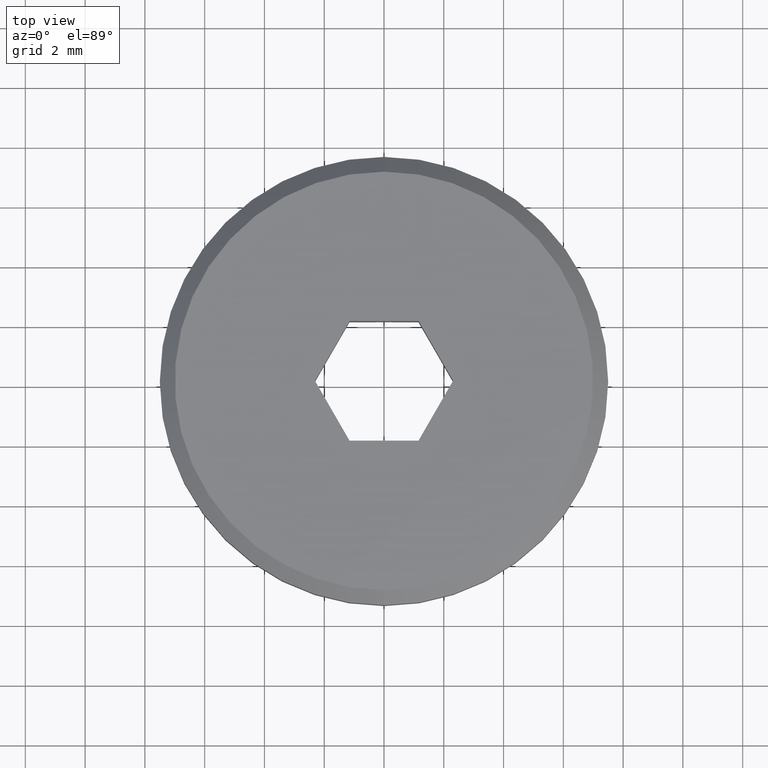
[diagram: clean part render]
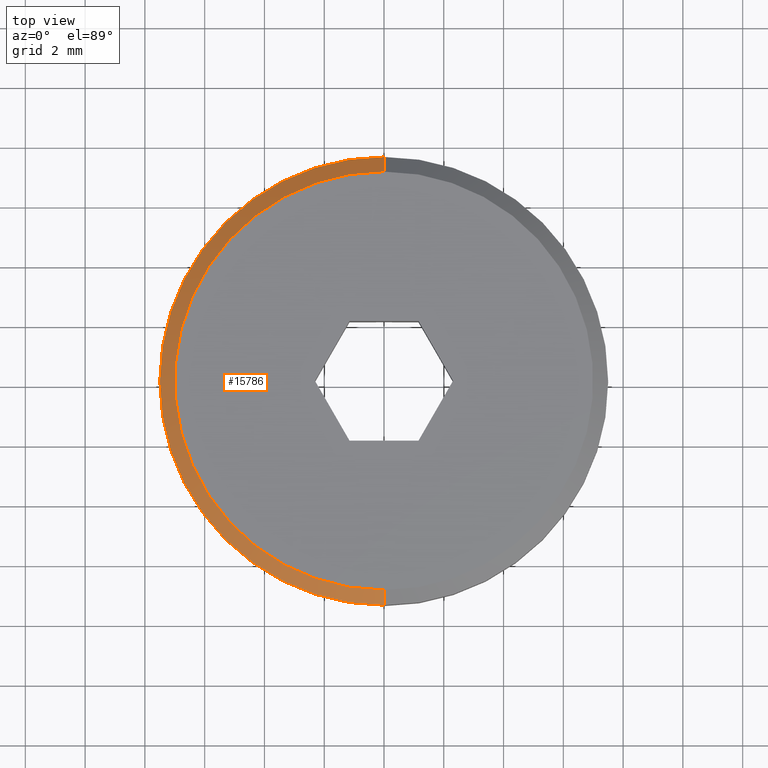
[diagram: same view with one face highlighted and labeled with its STEP entity id]
A machine part, top view. The second image highlights one B-rep face of the part: STEP entity #15786.
In plain terms, the highlighted conical surface has half-angle 45 deg.
Its self-contained STEP definition (entity closure, byte-faithful):
#149 = ORIENTED_EDGE ( 'NONE', *, *, #9396, .F. ) ;
#389 = VERTEX_POINT ( 'NONE', #4939 ) ;
#1475 = VECTOR ( 'NONE', #9604, 1000.000000000000000 ) ;
#2305 = CARTESIAN_POINT ( 'NONE',  ( 8.878689293818312000E-016, -7.000000000000001800, 6.099999999999997900 ) ) ;
#3181 = CARTESIAN_POINT ( 'NONE',  ( 0.0000000000000000000, 7.500000000000000000, 5.600000000000003200 ) ) ;
#3314 = VECTOR ( 'NONE', #7007, 1000.000000000000000 ) ;
#4811 = ORIENTED_EDGE ( 'NONE', *, *, #7564, .F. ) ;
#4865 = LINE ( 'NONE', #14684, #1475 ) ;
#4884 = DIRECTION ( 'NONE',  ( -0.0000000000000000000, 3.466407542334332000E-016, -1.000000000000000000 ) ) ;
#4939 = CARTESIAN_POINT ( 'NONE',  ( 0.0000000000000000000, 7.000000000000000000, 6.100000000000003200 ) ) ;
#5230 = EDGE_CURVE ( 'NONE', #389, #11659, #8237, .T. ) ;
#6171 = EDGE_CURVE ( 'NONE', #389, #12243, #15221, .T. ) ;
#6439 = ORIENTED_EDGE ( 'NONE', *, *, #5230, .F. ) ;
#7007 = DIRECTION ( 'NONE',  ( 0.0000000000000000000, 0.7071067811865477900, -0.7071067811865473500 ) ) ;
#7307 = DIRECTION ( 'NONE',  ( 0.0000000000000000000, -3.466407542334334500E-016, 1.000000000000000000 ) ) ;
#7551 = AXIS2_PLACEMENT_3D ( 'NONE', #14947, #4884, #16056 ) ;
#7564 = EDGE_CURVE ( 'NONE', #12704, #12243, #8913, .T. ) ;
#7771 = AXIS2_PLACEMENT_3D ( 'NONE', #15347, #15404, #14000 ) ;
#8216 = EDGE_LOOP ( 'NONE', ( #149, #6439, #9140, #4811 ) ) ;
#8237 = CIRCLE ( 'NONE', #12070, 7.000000000000000900 ) ;
#8583 = CARTESIAN_POINT ( 'NONE',  ( 0.0000000000000000000, -1.255262969126036500E-015, 6.100000000000000500 ) ) ;
#8798 = CARTESIAN_POINT ( 'NONE',  ( 0.0000000000000000000, 7.500000000000000000, 5.600000000000005000 ) ) ;
#8913 = CIRCLE ( 'NONE', #7771, 7.500000000000000900 ) ;
#9123 = CARTESIAN_POINT ( 'NONE',  ( 9.184850993605149900E-016, -7.500000000000001800, 5.599999999999999600 ) ) ;
#9140 = ORIENTED_EDGE ( 'NONE', *, *, #6171, .T. ) ;
#9396 = EDGE_CURVE ( 'NONE', #11659, #12704, #4865, .T. ) ;
#9604 = DIRECTION ( 'NONE',  ( 8.659560562354934100E-017, -0.7071067811865473500, -0.7071067811865477900 ) ) ;
#10342 = FACE_OUTER_BOUND ( 'NONE', #8216, .T. ) ;
#10531 = CONICAL_SURFACE ( 'NONE', #7551, 7.500000000000000900, 0.7853981633974482800 ) ;
#11659 = VERTEX_POINT ( 'NONE', #2305 ) ;
#12070 = AXIS2_PLACEMENT_3D ( 'NONE', #8583, #7307, #14713 ) ;
#12243 = VERTEX_POINT ( 'NONE', #8798 ) ;
#12704 = VERTEX_POINT ( 'NONE', #9123 ) ;
#14000 = DIRECTION ( 'NONE',  ( 0.0000000000000000000, -1.000000000000000000, -3.469446951953613700E-016 ) ) ;
#14684 = CARTESIAN_POINT ( 'NONE',  ( 9.184850993605149900E-016, -7.500000000000001800, 5.599999999999997900 ) ) ;
#14713 = DIRECTION ( 'NONE',  ( 0.0000000000000000000, -1.000000000000000000, -3.717264591378871700E-016 ) ) ;
#14947 = CARTESIAN_POINT ( 'NONE',  ( 0.0000000000000000000, -1.081942592009319800E-015, 5.600000000000000500 ) ) ;
#15221 = LINE ( 'NONE', #3181, #3314 ) ;
#15347 = CARTESIAN_POINT ( 'NONE',  ( 0.0000000000000000000, -1.081942592009320500E-015, 5.600000000000002300 ) ) ;
#15404 = DIRECTION ( 'NONE',  ( -0.0000000000000000000, 3.466407542334332000E-016, -1.000000000000000000 ) ) ;
#15786 = ADVANCED_FACE ( 'NONE', ( #10342 ), #10531, .T. ) ;
#16056 = DIRECTION ( 'NONE',  ( 0.0000000000000000000, 1.000000000000000000, 3.469446951953613700E-016 ) ) ;